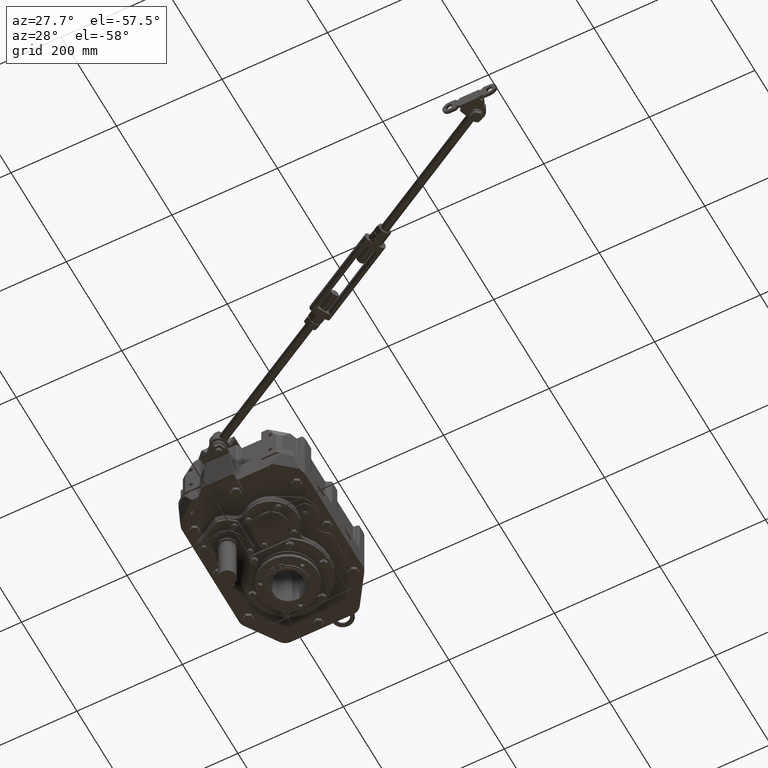
[diagram: clean part render]
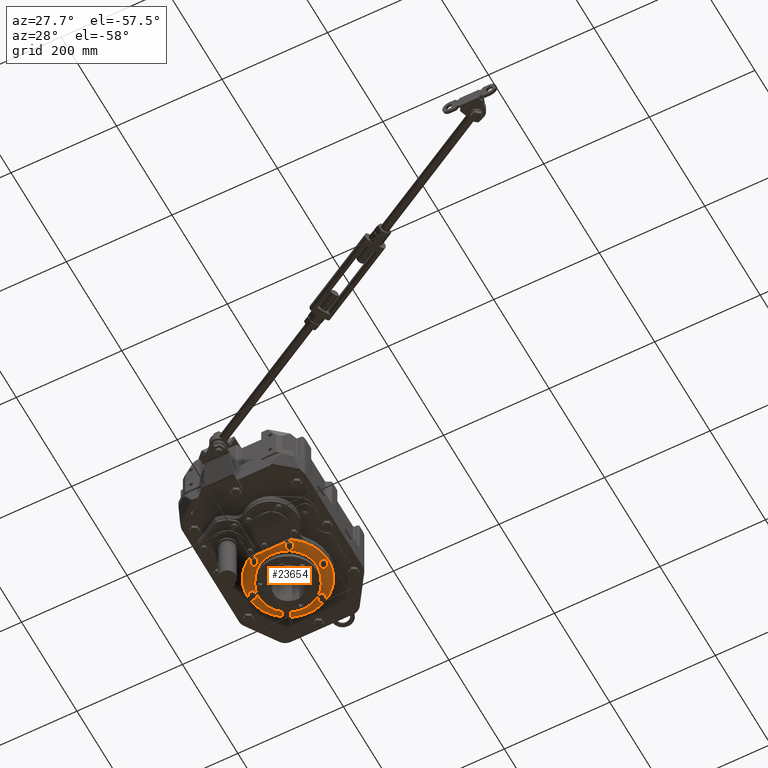
[diagram: same view with one face highlighted and labeled with its STEP entity id]
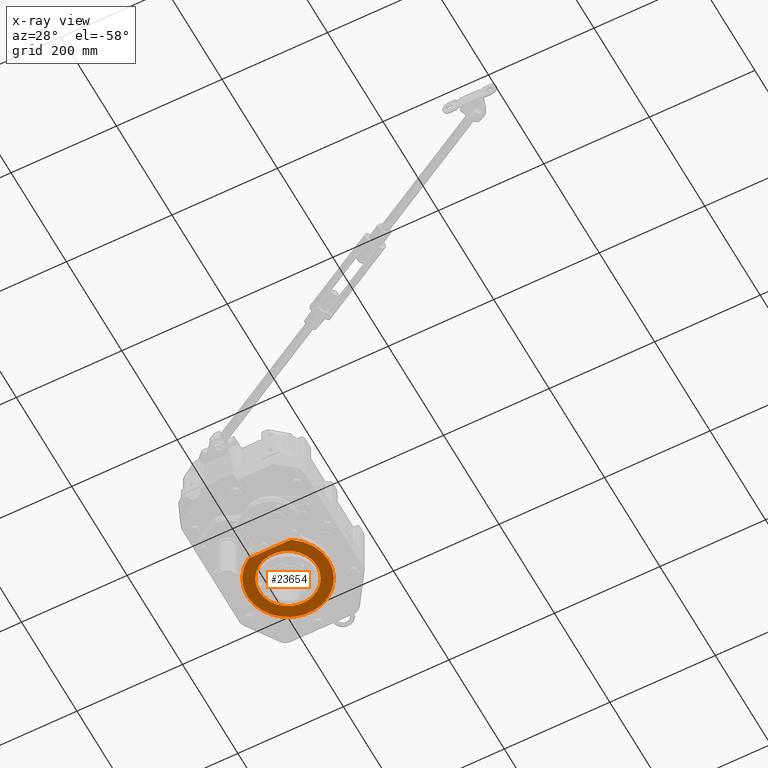
[diagram: x-ray of the same camera — body ghosted, the highlighted face saturated]
A machine part, auxiliary view. The second image highlights one B-rep face of the part: STEP entity #23654.
The next image is the same camera in x-ray: the body ghosted, the highlighted face saturated — about 0% of this face is hidden behind the body in this view.
In plain terms, the highlighted planar face has unit normal (0, 0, 1).
Its self-contained STEP definition (entity closure, byte-faithful):
#338 = CIRCLE ( 'NONE', #45348, 3.031496062992125900 ) ;
#678 = CARTESIAN_POINT ( 'NONE',  ( -2.165354330708661600, 2.651794250122221200E-016, -1.732283464566929200 ) ) ;
#1605 = AXIS2_PLACEMENT_3D ( 'NONE', #33974, #7865, #38405 ) ;
#2370 = CARTESIAN_POINT ( 'NONE',  ( 1.459881591947965300, -2.244094488188976400, -1.732283464566929200 ) ) ;
#2603 = ORIENTED_EDGE ( 'NONE', *, *, #5078, .T. ) ;
#2798 = AXIS2_PLACEMENT_3D ( 'NONE', #11949, #42563, #16301 ) ;
#4008 = VERTEX_POINT ( 'NONE', #55246 ) ;
#4986 = EDGE_CURVE ( 'NONE', #11774, #31165, #338, .T. ) ;
#5078 = EDGE_CURVE ( 'NONE', #51840, #11774, #21459, .T. ) ;
#6776 = DIRECTION ( 'NONE',  ( 0.0000000000000000000, -0.0000000000000000000, 1.000000000000000000 ) ) ;
#7049 = CARTESIAN_POINT ( 'NONE',  ( 0.0000000000000000000, 0.0000000000000000000, -1.732283464566929200 ) ) ;
#7865 = DIRECTION ( 'NONE',  ( -0.0000000000000000000, 0.0000000000000000000, -1.000000000000000000 ) ) ;
#8071 = EDGE_CURVE ( 'NONE', #46453, #13408, #52190, .T. ) ;
#9676 = ORIENTED_EDGE ( 'NONE', *, *, #8071, .F. ) ;
#10382 = VECTOR ( 'NONE', #31015, 39.37007874015748100 ) ;
#10606 = EDGE_LOOP ( 'NONE', ( #15681, #25169, #2603, #15804, #11222, #33096 ) ) ;
#10639 = CARTESIAN_POINT ( 'NONE',  ( 1.653101214411665700, -2.541106993978695000, -1.732283464566929200 ) ) ;
#11222 = ORIENTED_EDGE ( 'NONE', *, *, #30749, .T. ) ;
#11430 = DIRECTION ( 'NONE',  ( 1.000000000000000000, 0.0000000000000000000, 0.0000000000000000000 ) ) ;
#11600 = VERTEX_POINT ( 'NONE', #34827 ) ;
#11758 = LINE ( 'NONE', #26947, #10382 ) ;
#11774 = VERTEX_POINT ( 'NONE', #27085 ) ;
#11949 = CARTESIAN_POINT ( 'NONE',  ( -1.459881591947965300, -2.244094488188976400, -1.732283464566929200 ) ) ;
#13408 = VERTEX_POINT ( 'NONE', #49352 ) ;
#13679 = FACE_BOUND ( 'NONE', #41220, .T. ) ;
#15681 = ORIENTED_EDGE ( 'NONE', *, *, #34201, .T. ) ;
#15804 = ORIENTED_EDGE ( 'NONE', *, *, #4986, .T. ) ;
#16012 = CARTESIAN_POINT ( 'NONE',  ( 1.459881591947965300, -2.244094488188976400, -1.732283464566929200 ) ) ;
#16301 = DIRECTION ( 'NONE',  ( 1.000000000000000000, 0.0000000000000000000, 0.0000000000000000000 ) ) ;
#18232 = CARTESIAN_POINT ( 'NONE',  ( -3.031496062992125900, 3.736619170626767100E-016, -1.732283464566929200 ) ) ;
#19884 = EDGE_CURVE ( 'NONE', #13408, #46453, #29147, .T. ) ;
#20363 = DIRECTION ( 'NONE',  ( 1.000000000000000000, 0.0000000000000000000, 0.0000000000000000000 ) ) ;
#20429 = CARTESIAN_POINT ( 'NONE',  ( 0.0000000000000000000, 0.0000000000000000000, -1.732283464566929200 ) ) ;
#21459 = CIRCLE ( 'NONE', #47200, 3.031496062992125900 ) ;
#21559 = AXIS2_PLACEMENT_3D ( 'NONE', #16012, #46600, #20363 ) ;
#22586 = CARTESIAN_POINT ( 'NONE',  ( 0.0000000000000000000, 0.0000000000000000000, -1.732283464566929200 ) ) ;
#23654 = ADVANCED_FACE ( 'NONE', ( #45815, #13679 ), #28465, .F. ) ;
#23841 = DIRECTION ( 'NONE',  ( -0.0000000000000000000, 0.0000000000000000000, -1.000000000000000000 ) ) ;
#24434 = AXIS2_PLACEMENT_3D ( 'NONE', #22586, #53284, #26957 ) ;
#25169 = ORIENTED_EDGE ( 'NONE', *, *, #26195, .T. ) ;
#26012 = AXIS2_PLACEMENT_3D ( 'NONE', #7049, #37604, #11430 ) ;
#26195 = EDGE_CURVE ( 'NONE', #56398, #51840, #38673, .T. ) ;
#26947 = CARTESIAN_POINT ( 'NONE',  ( 1.459881591947965300, -2.598425196850394000, -1.732283464566929200 ) ) ;
#26957 = DIRECTION ( 'NONE',  ( 1.000000000000000000, 0.0000000000000000000, 0.0000000000000000000 ) ) ;
#27085 = CARTESIAN_POINT ( 'NONE',  ( 3.031496062992125900, 0.0000000000000000000, -1.732283464566929200 ) ) ;
#27830 = EDGE_CURVE ( 'NONE', #11600, #4008, #11758, .T. ) ;
#28465 = PLANE ( 'NONE',  #47479 ) ;
#29147 = CIRCLE ( 'NONE', #24434, 2.165354330708661600 ) ;
#30749 = EDGE_CURVE ( 'NONE', #31165, #11600, #45856, .T. ) ;
#31015 = DIRECTION ( 'NONE',  ( -1.000000000000000000, 0.0000000000000000000, 0.0000000000000000000 ) ) ;
#31165 = VERTEX_POINT ( 'NONE', #10639 ) ;
#31268 = ORIENTED_EDGE ( 'NONE', *, *, #19884, .F. ) ;
#33096 = ORIENTED_EDGE ( 'NONE', *, *, #27830, .T. ) ;
#33974 = CARTESIAN_POINT ( 'NONE',  ( 0.0000000000000000000, 0.0000000000000000000, -1.732283464566929200 ) ) ;
#34201 = EDGE_CURVE ( 'NONE', #4008, #56398, #36171, .T. ) ;
#34827 = CARTESIAN_POINT ( 'NONE',  ( 1.459881591947965300, -2.598425196850394000, -1.732283464566929200 ) ) ;
#36171 = CIRCLE ( 'NONE', #2798, 0.3543307086614173600 ) ;
#37336 = DIRECTION ( 'NONE',  ( 1.000000000000000000, 0.0000000000000000000, -0.0000000000000000000 ) ) ;
#37604 = DIRECTION ( 'NONE',  ( -0.0000000000000000000, 0.0000000000000000000, -1.000000000000000000 ) ) ;
#38405 = DIRECTION ( 'NONE',  ( 1.000000000000000000, 1.776356839400250500E-015, 0.0000000000000000000 ) ) ;
#38673 = CIRCLE ( 'NONE', #1605, 3.031496062992125900 ) ;
#41220 = EDGE_LOOP ( 'NONE', ( #31268, #9676 ) ) ;
#42563 = DIRECTION ( 'NONE',  ( -0.0000000000000000000, 0.0000000000000000000, -1.000000000000000000 ) ) ;
#44451 = DIRECTION ( 'NONE',  ( 1.000000000000000000, 0.0000000000000000000, 0.0000000000000000000 ) ) ;
#45348 = AXIS2_PLACEMENT_3D ( 'NONE', #50128, #23841, #54552 ) ;
#45815 = FACE_OUTER_BOUND ( 'NONE', #10606, .T. ) ;
#45856 = CIRCLE ( 'NONE', #21559, 0.3543307086614173600 ) ;
#46376 = CARTESIAN_POINT ( 'NONE',  ( -1.653101214411666600, -2.541106993978694600, -1.732283464566929200 ) ) ;
#46453 = VERTEX_POINT ( 'NONE', #678 ) ;
#46600 = DIRECTION ( 'NONE',  ( -0.0000000000000000000, 0.0000000000000000000, -1.000000000000000000 ) ) ;
#47200 = AXIS2_PLACEMENT_3D ( 'NONE', #20429, #51085, #44451 ) ;
#47479 = AXIS2_PLACEMENT_3D ( 'NONE', #2370, #6776, #37336 ) ;
#49352 = CARTESIAN_POINT ( 'NONE',  ( 2.165354330708661600, 0.0000000000000000000, -1.732283464566929200 ) ) ;
#50128 = CARTESIAN_POINT ( 'NONE',  ( 0.0000000000000000000, 0.0000000000000000000, -1.732283464566929200 ) ) ;
#51085 = DIRECTION ( 'NONE',  ( -0.0000000000000000000, 0.0000000000000000000, -1.000000000000000000 ) ) ;
#51840 = VERTEX_POINT ( 'NONE', #18232 ) ;
#52190 = CIRCLE ( 'NONE', #26012, 2.165354330708661600 ) ;
#53284 = DIRECTION ( 'NONE',  ( -0.0000000000000000000, 0.0000000000000000000, -1.000000000000000000 ) ) ;
#54552 = DIRECTION ( 'NONE',  ( 1.000000000000000000, 0.0000000000000000000, 0.0000000000000000000 ) ) ;
#55246 = CARTESIAN_POINT ( 'NONE',  ( -1.459881591947965300, -2.598425196850394000, -1.732283464566929200 ) ) ;
#56398 = VERTEX_POINT ( 'NONE', #46376 ) ;